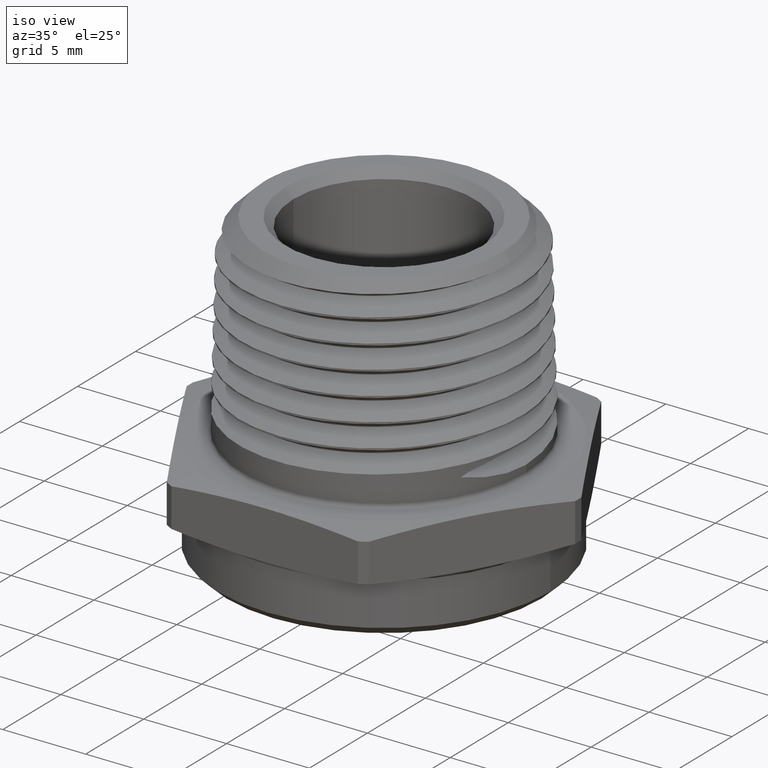
[diagram: clean part render]
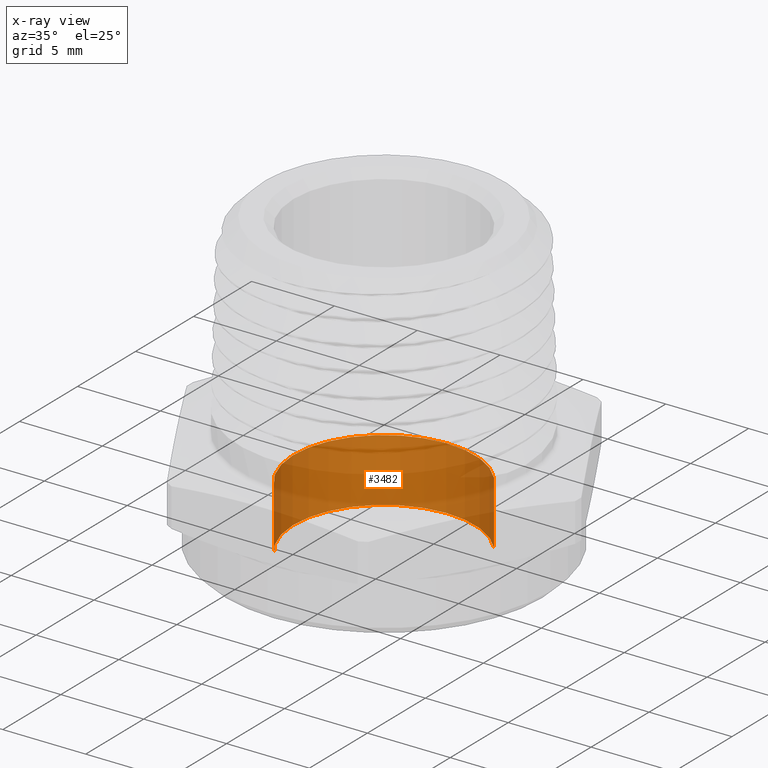
[diagram: x-ray — body ghosted, one internal face saturated and labeled with its STEP entity id]
A machine part, iso view, then the same camera in x-ray: the body is ghosted and one INTERNAL B-rep face — a face not visible from any outside direction — is saturated and labeled: STEP entity #3482.
In plain terms, the highlighted cylindrical surface (partial cylindrical patch) has radius 5.461 mm, axis along (0, 0, -1).
Its self-contained STEP definition (entity closure, byte-faithful):
#103 = EDGE_LOOP ( 'NONE', ( #5256, #5225, #5226, #5224 ) ) ;
#544 = CARTESIAN_POINT ( 'NONE',  ( 2.632990618166808500E-017, 0.1499999999999999900, 0.2149999999999999700 ) ) ;
#550 = DIRECTION ( 'NONE',  ( -0.0000000000000000000, -1.000000000000000000, -0.0000000000000000000 ) ) ;
#551 = CARTESIAN_POINT ( 'NONE',  ( 0.0000000000000000000, 0.1499999999999999900, -0.2149999999999999700 ) ) ;
#552 = DIRECTION ( 'NONE',  ( -0.0000000000000000000, -1.000000000000000000, -0.0000000000000000000 ) ) ;
#553 = CARTESIAN_POINT ( 'NONE',  ( 0.0000000000000000000, 0.1499999999999999900, 0.0000000000000000000 ) ) ;
#554 = DIRECTION ( 'NONE',  ( 0.0000000000000000000, 1.000000000000000000, 0.0000000000000000000 ) ) ;
#555 = DIRECTION ( 'NONE',  ( 0.0000000000000000000, 0.0000000000000000000, 1.000000000000000000 ) ) ;
#556 = CARTESIAN_POINT ( 'NONE',  ( 0.0000000000000000000, 0.0000000000000000000, 0.0000000000000000000 ) ) ;
#557 = DIRECTION ( 'NONE',  ( 0.0000000000000000000, 1.000000000000000000, 0.0000000000000000000 ) ) ;
#558 = DIRECTION ( 'NONE',  ( 0.0000000000000000000, 0.0000000000000000000, 1.000000000000000000 ) ) ;
#2851 = CARTESIAN_POINT ( 'NONE',  ( 2.632990618166808500E-017, 0.1499999999999999900, 0.2149999999999999700 ) ) ;
#2853 = CARTESIAN_POINT ( 'NONE',  ( 2.632990618166808500E-017, 0.0000000000000000000, 0.2149999999999999700 ) ) ;
#2857 = CARTESIAN_POINT ( 'NONE',  ( 0.0000000000000000000, 0.0000000000000000000, -0.2149999999999999700 ) ) ;
#2858 = CARTESIAN_POINT ( 'NONE',  ( 0.0000000000000000000, 0.1499999999999999900, -0.2149999999999999700 ) ) ;
#3482 = ADVANCED_FACE ( 'NONE', ( #4503 ), #4512, .T. ) ;
#3508 = AXIS2_PLACEMENT_3D ( 'NONE', #4154, #4150, #4151 ) ;
#3519 = AXIS2_PLACEMENT_3D ( 'NONE', #553, #554, #555 ) ;
#3520 = AXIS2_PLACEMENT_3D ( 'NONE', #556, #557, #558 ) ;
#3935 = EDGE_CURVE ( 'NONE', #4368, #4363, #4542, .T. ) ;
#3936 = EDGE_CURVE ( 'NONE', #4368, #4364, #4544, .T. ) ;
#3937 = EDGE_CURVE ( 'NONE', #4363, #4362, #4546, .T. ) ;
#3938 = EDGE_CURVE ( 'NONE', #4364, #4362, #4549, .T. ) ;
#4150 = DIRECTION ( 'NONE',  ( -0.0000000000000000000, -1.000000000000000000, -0.0000000000000000000 ) ) ;
#4151 = DIRECTION ( 'NONE',  ( 0.0000000000000000000, 0.0000000000000000000, -1.000000000000000000 ) ) ;
#4154 = CARTESIAN_POINT ( 'NONE',  ( 0.0000000000000000000, 0.1499999999999999900, 0.0000000000000000000 ) ) ;
#4362 = VERTEX_POINT ( 'NONE', #2857 ) ;
#4363 = VERTEX_POINT ( 'NONE', #2853 ) ;
#4364 = VERTEX_POINT ( 'NONE', #2858 ) ;
#4368 = VERTEX_POINT ( 'NONE', #2851 ) ;
#4503 = FACE_OUTER_BOUND ( 'NONE', #103, .T. ) ;
#4512 = CYLINDRICAL_SURFACE ( 'NONE', #3508, 0.2149999999999999700 ) ;
#4542 = LINE ( 'NONE', #544, #4547 ) ;
#4544 = CIRCLE ( 'NONE', #3519, 0.2149999999999999700 ) ;
#4546 = CIRCLE ( 'NONE', #3520, 0.2149999999999999700 ) ;
#4547 = VECTOR ( 'NONE', #550, 39.37007874015748100 ) ;
#4549 = LINE ( 'NONE', #551, #4551 ) ;
#4551 = VECTOR ( 'NONE', #552, 39.37007874015748100 ) ;
#5224 = ORIENTED_EDGE ( 'NONE', *, *, #3938, .F. ) ;
#5225 = ORIENTED_EDGE ( 'NONE', *, *, #3935, .T. ) ;
#5226 = ORIENTED_EDGE ( 'NONE', *, *, #3937, .T. ) ;
#5256 = ORIENTED_EDGE ( 'NONE', *, *, #3936, .F. ) ;